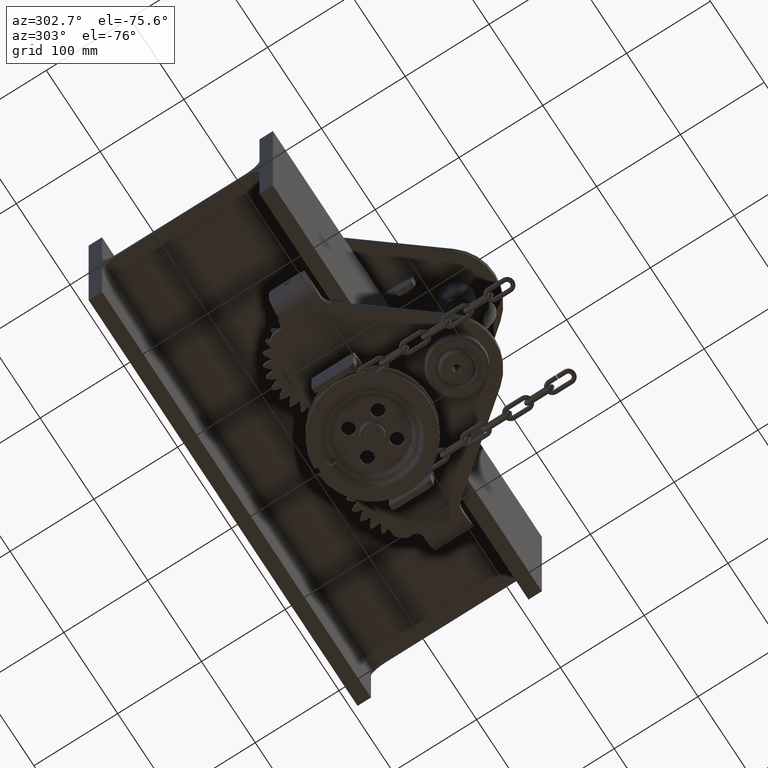
[diagram: clean part render]
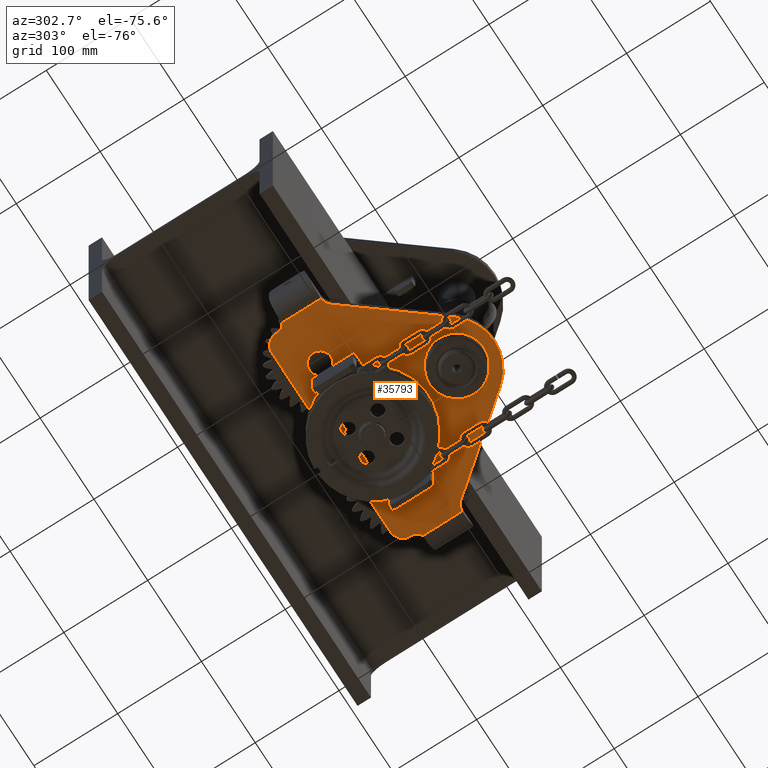
[diagram: same view with one face highlighted and labeled with its STEP entity id]
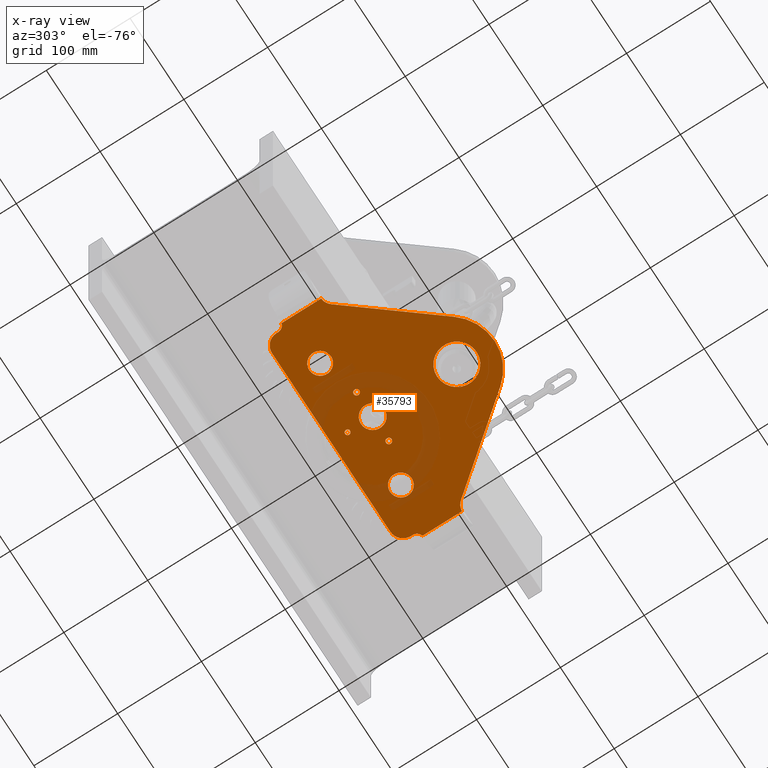
[diagram: x-ray of the same camera — body ghosted, the highlighted face saturated]
A machine part, auxiliary view. The second image highlights one B-rep face of the part: STEP entity #35793.
The next image is the same camera in x-ray: the body ghosted, the highlighted face saturated — about 14% of this face is hidden behind the body in this view.
In plain terms, the highlighted planar face has unit normal (0, 0, -1).
Its self-contained STEP definition (entity closure, byte-faithful):
#73 = CARTESIAN_POINT ( 'NONE',  ( -110.0000000000001300, -33.99999999999986500, -136.9999999999994600 ) ) ;
#652 = EDGE_CURVE ( 'NONE', #59245, #78891, #79615, .T. ) ;
#899 = EDGE_CURVE ( 'NONE', #67370, #43402, #65074, .T. ) ;
#1094 = CARTESIAN_POINT ( 'NONE',  ( 29.99999999999983300, -65.11999999999990500, -136.9999999999994600 ) ) ;
#1097 = AXIS2_PLACEMENT_3D ( 'NONE', #94755, #52345, #85283 ) ;
#1808 = DIRECTION ( 'NONE',  ( 0.0000000000000000000, 1.000000000000000000, 1.224606353822377300E-016 ) ) ;
#1983 = CIRCLE ( 'NONE', #8566, 15.00000000000000000 ) ;
#2643 = DIRECTION ( 'NONE',  ( 0.0000000000000000000, 1.000000000000000000, 1.224606353822377300E-016 ) ) ;
#2717 = VERTEX_POINT ( 'NONE', #107734 ) ;
#3282 = CIRCLE ( 'NONE', #64720, 8.000000000000003600 ) ;
#3321 = CARTESIAN_POINT ( 'NONE',  ( 109.9999999999998400, -33.99999999999989300, -136.9999999999994600 ) ) ;
#3772 = CARTESIAN_POINT ( 'NONE',  ( -1.387778780781445700E-013, -168.9999999999998900, -136.9999999999994900 ) ) ;
#3836 = EDGE_CURVE ( 'NONE', #25711, #80579, #53904, .T. ) ;
#4338 = CARTESIAN_POINT ( 'NONE',  ( 120.4964843667718200, -96.61803319927669500, -136.9999999999994600 ) ) ;
#4355 = CARTESIAN_POINT ( 'NONE',  ( -131.0000000000001400, -91.04809906435026800, -136.9999999999994600 ) ) ;
#4409 = ORIENTED_EDGE ( 'NONE', *, *, #652, .T. ) ;
#4417 = DIRECTION ( 'NONE',  ( 0.0000000000000000000, 1.224606353822377300E-016, -1.000000000000000000 ) ) ;
#4706 = CARTESIAN_POINT ( 'NONE',  ( -30.00000000000016700, -68.51999999999988200, -136.9999999999994600 ) ) ;
#5162 = EDGE_CURVE ( 'NONE', #40795, #47953, #36198, .T. ) ;
#5544 = CARTESIAN_POINT ( 'NONE',  ( -75.00000000000015600, -53.99999999999989300, -136.9999999999994600 ) ) ;
#6331 = VERTEX_POINT ( 'NONE', #60033 ) ;
#6685 = AXIS2_PLACEMENT_3D ( 'NONE', #101547, #18002, #51350 ) ;
#7227 = ORIENTED_EDGE ( 'NONE', *, *, #23768, .T. ) ;
#7337 = CARTESIAN_POINT ( 'NONE',  ( -1.665334536937734800E-013, -68.51999999999988200, -136.9999999999994600 ) ) ;
#7719 = CARTESIAN_POINT ( 'NONE',  ( 42.91389644517570900, -193.4005449359849300, -136.9999999999994600 ) ) ;
#8000 = ORIENTED_EDGE ( 'NONE', *, *, #63239, .T. ) ;
#8428 = DIRECTION ( 'NONE',  ( 0.0000000000000000000, 1.000000000000000000, 0.0000000000000000000 ) ) ;
#8566 = AXIS2_PLACEMENT_3D ( 'NONE', #36663, #87919, #86513 ) ;
#8819 = CIRCLE ( 'NONE', #58033, 8.000000000000003600 ) ;
#8954 = FACE_BOUND ( 'NONE', #34203, .T. ) ;
#9912 = CIRCLE ( 'NONE', #25004, 23.60000000000000900 ) ;
#10301 = CARTESIAN_POINT ( 'NONE',  ( -42.91389644517602900, -193.4005449359849300, -136.9999999999994600 ) ) ;
#10419 = VERTEX_POINT ( 'NONE', #102532 ) ;
#11129 = AXIS2_PLACEMENT_3D ( 'NONE', #3321, #4417, #12433 ) ;
#12147 = DIRECTION ( 'NONE',  ( -0.0000000000000000000, -1.224606353822377300E-016, 1.000000000000000000 ) ) ;
#12284 = AXIS2_PLACEMENT_3D ( 'NONE', #4706, #29605, #54901 ) ;
#12433 = DIRECTION ( 'NONE',  ( 0.0000000000000000000, -1.000000000000000000, 0.0000000000000000000 ) ) ;
#12790 = ORIENTED_EDGE ( 'NONE', *, *, #5162, .F. ) ;
#12872 = DIRECTION ( 'NONE',  ( 0.0000000000000000000, -1.000000000000000000, 0.0000000000000000000 ) ) ;
#14220 = FACE_OUTER_BOUND ( 'NONE', #23734, .T. ) ;
#14679 = DIRECTION ( 'NONE',  ( 0.0000000000000000000, -1.224606353822377300E-016, 1.000000000000000000 ) ) ;
#17450 = EDGE_CURVE ( 'NONE', #70076, #51594, #56736, .T. ) ;
#18002 = DIRECTION ( 'NONE',  ( 0.0000000000000000000, -1.224606353822377300E-016, 1.000000000000000000 ) ) ;
#18496 = CARTESIAN_POINT ( 'NONE',  ( -1.665334536937734800E-013, -82.51999999999988200, -136.9999999999994600 ) ) ;
#18559 = CIRCLE ( 'NONE', #12284, 3.400000000000000400 ) ;
#20782 = ORIENTED_EDGE ( 'NONE', *, *, #32483, .T. ) ;
#20842 = ORIENTED_EDGE ( 'NONE', *, *, #77839, .T. ) ;
#21552 = ORIENTED_EDGE ( 'NONE', *, *, #74555, .T. ) ;
#22568 = ORIENTED_EDGE ( 'NONE', *, *, #97216, .T. ) ;
#23027 = DIRECTION ( 'NONE',  ( -0.0000000000000000000, -1.224606353822377300E-016, 1.000000000000000000 ) ) ;
#23087 = DIRECTION ( 'NONE',  ( 0.0000000000000000000, -1.000000000000000000, 0.0000000000000000000 ) ) ;
#23403 = CIRCLE ( 'NONE', #96873, 55.00000000000002100 ) ;
#23734 = EDGE_LOOP ( 'NONE', ( #43636, #96577, #84201, #84536, #32937, #37136, #20782, #94601, #7227, #8000, #103105, #94557, #12790, #107642 ) ) ;
#23768 = EDGE_CURVE ( 'NONE', #31378, #58559, #50377, .T. ) ;
#24074 = EDGE_CURVE ( 'NONE', #63563, #81916, #27913, .T. ) ;
#24454 = DIRECTION ( 'NONE',  ( -0.0000000000000000000, -1.224606353822377300E-016, 1.000000000000000000 ) ) ;
#25004 = AXIS2_PLACEMENT_3D ( 'NONE', #58260, #24454, #98850 ) ;
#25711 = VERTEX_POINT ( 'NONE', #46926 ) ;
#25863 = DIRECTION ( 'NONE',  ( 0.0000000000000000000, 1.224606353822377300E-016, -1.000000000000000000 ) ) ;
#26760 = EDGE_CURVE ( 'NONE', #6331, #101007, #82602, .T. ) ;
#27913 = CIRCLE ( 'NONE', #107511, 3.399999999999986100 ) ;
#28038 = DIRECTION ( 'NONE',  ( 0.0000000000000000000, -1.000000000000000000, -1.224606353822377300E-016 ) ) ;
#29124 = CARTESIAN_POINT ( 'NONE',  ( 74.99999999999981500, -66.99999999999987200, -136.9999999999994600 ) ) ;
#29433 = DIRECTION ( 'NONE',  ( 0.0000000000000000000, -1.000000000000000000, 0.0000000000000000000 ) ) ;
#29605 = DIRECTION ( 'NONE',  ( 0.0000000000000000000, 1.224606353822377300E-016, -1.000000000000000000 ) ) ;
#30002 = DIRECTION ( 'NONE',  ( -1.000000000000000000, -0.0000000000000000000, 0.0000000000000000000 ) ) ;
#30172 = CARTESIAN_POINT ( 'NONE',  ( -131.0000000000001400, -213.9999999999999100, -136.9999999999994600 ) ) ;
#30490 = CIRCLE ( 'NONE', #108629, 13.00000000000000500 ) ;
#30542 = DIRECTION ( 'NONE',  ( 0.0000000000000000000, 1.224606353822377300E-016, -1.000000000000000000 ) ) ;
#30892 = VECTOR ( 'NONE', #2643, 1000.000000000000000 ) ;
#31193 = ORIENTED_EDGE ( 'NONE', *, *, #101825, .T. ) ;
#31378 = VERTEX_POINT ( 'NONE', #4355 ) ;
#32483 = EDGE_CURVE ( 'NONE', #65886, #46636, #67208, .T. ) ;
#32660 = AXIS2_PLACEMENT_3D ( 'NONE', #46311, #80416, #29433 ) ;
#32937 = ORIENTED_EDGE ( 'NONE', *, *, #26760, .T. ) ;
#33026 = ORIENTED_EDGE ( 'NONE', *, *, #67580, .F. ) ;
#33047 = VECTOR ( 'NONE', #1808, 1000.000000000000000 ) ;
#33577 = EDGE_CURVE ( 'NONE', #43402, #47953, #40485, .T. ) ;
#34203 = EDGE_LOOP ( 'NONE', ( #70425, #22568 ) ) ;
#34704 = CARTESIAN_POINT ( 'NONE',  ( 29.99999999999983300, -68.51999999999988200, -136.9999999999994600 ) ) ;
#35613 = EDGE_CURVE ( 'NONE', #51594, #70076, #58979, .T. ) ;
#35793 = ADVANCED_FACE ( 'NONE', ( #49636, #68063, #47027, #70716, #44407, #107266, #8954, #14220 ), #55459, .T. ) ;
#36169 = DIRECTION ( 'NONE',  ( 0.0000000000000000000, -1.224606353822377300E-016, 1.000000000000000000 ) ) ;
#36198 = LINE ( 'NONE', #96315, #105624 ) ;
#36345 = CARTESIAN_POINT ( 'NONE',  ( -30.00000000000016700, -71.91999999999988800, -136.9999999999994600 ) ) ;
#36663 = CARTESIAN_POINT ( 'NONE',  ( 132.2002743063652600, -105.9999999999999000, -136.9999999999994600 ) ) ;
#36821 = DIRECTION ( 'NONE',  ( -0.0000000000000000000, -1.224606353822377300E-016, 1.000000000000000000 ) ) ;
#36888 = CARTESIAN_POINT ( 'NONE',  ( -1.665334536937734800E-013, -38.51999999999989700, -136.9999999999994600 ) ) ;
#37024 = AXIS2_PLACEMENT_3D ( 'NONE', #77886, #44828, #62145 ) ;
#37136 = ORIENTED_EDGE ( 'NONE', *, *, #49448, .T. ) ;
#37538 = DIRECTION ( 'NONE',  ( 0.0000000000000000000, 1.224606353822377300E-016, -1.000000000000000000 ) ) ;
#37654 = CARTESIAN_POINT ( 'NONE',  ( 74.99999999999981500, -40.99999999999987200, -136.9999999999994600 ) ) ;
#38009 = AXIS2_PLACEMENT_3D ( 'NONE', #88678, #54590, #105128 ) ;
#38275 = DIRECTION ( 'NONE',  ( 0.0000000000000000000, 1.000000000000000000, 0.0000000000000000000 ) ) ;
#38631 = DIRECTION ( 'NONE',  ( 0.0000000000000000000, 1.000000000000000000, 1.224606353822377300E-016 ) ) ;
#39214 = DIRECTION ( 'NONE',  ( 0.0000000000000000000, 1.000000000000000000, 0.0000000000000000000 ) ) ;
#39285 = ORIENTED_EDGE ( 'NONE', *, *, #77070, .T. ) ;
#40485 = CIRCLE ( 'NONE', #76712, 15.00000000000000700 ) ;
#40795 = VERTEX_POINT ( 'NONE', #71347 ) ;
#41257 = EDGE_CURVE ( 'NONE', #81916, #63563, #76977, .T. ) ;
#42149 = CARTESIAN_POINT ( 'NONE',  ( -1.665334536937734800E-013, -41.51999999999988900, -136.9999999999994600 ) ) ;
#42284 = EDGE_LOOP ( 'NONE', ( #85543, #86043 ) ) ;
#42418 = CARTESIAN_POINT ( 'NONE',  ( -110.0000000000001300, -18.99999999999986500, -136.9999999999994600 ) ) ;
#43402 = VERTEX_POINT ( 'NONE', #78061 ) ;
#43490 = DIRECTION ( 'NONE',  ( -0.6254644533815452200, 0.7802526626395611700, 9.555023682552343400E-017 ) ) ;
#43636 = ORIENTED_EDGE ( 'NONE', *, *, #3836, .T. ) ;
#44407 = FACE_BOUND ( 'NONE', #92670, .T. ) ;
#44810 = VECTOR ( 'NONE', #43490, 1000.000000000000000 ) ;
#44828 = DIRECTION ( 'NONE',  ( 0.0000000000000000000, 1.224606353822377300E-016, -1.000000000000000000 ) ) ;
#45952 = CARTESIAN_POINT ( 'NONE',  ( -30.00000000000016700, -65.11999999999989100, -136.9999999999994600 ) ) ;
#46311 = CARTESIAN_POINT ( 'NONE',  ( -1.665334536937734800E-013, -38.51999999999989700, -136.9999999999994600 ) ) ;
#46315 = CARTESIAN_POINT ( 'NONE',  ( -133.0000000000001400, -35.99999999999985100, -136.9999999999994600 ) ) ;
#46494 = CIRCLE ( 'NONE', #74190, 13.99999999999999800 ) ;
#46636 = VERTEX_POINT ( 'NONE', #91621 ) ;
#46926 = CARTESIAN_POINT ( 'NONE',  ( 124.9999999999998600, -33.99999999999989300, -136.9999999999994600 ) ) ;
#47027 = FACE_BOUND ( 'NONE', #94191, .T. ) ;
#47953 = VERTEX_POINT ( 'NONE', #42418 ) ;
#48232 = AXIS2_PLACEMENT_3D ( 'NONE', #5544, #63554, #55047 ) ;
#48830 = AXIS2_PLACEMENT_3D ( 'NONE', #30172, #30542, #38631 ) ;
#48945 = DIRECTION ( 'NONE',  ( -0.0000000000000000000, -1.224606353822377300E-016, 1.000000000000000000 ) ) ;
#49448 = EDGE_CURVE ( 'NONE', #101007, #65886, #23403, .T. ) ;
#49636 = FACE_BOUND ( 'NONE', #72762, .T. ) ;
#50377 = LINE ( 'NONE', #94455, #106760 ) ;
#51314 = CARTESIAN_POINT ( 'NONE',  ( -131.0000000000001400, -43.74596669241469000, -136.9999999999994600 ) ) ;
#51350 = DIRECTION ( 'NONE',  ( 0.0000000000000000000, -1.000000000000000000, 0.0000000000000000000 ) ) ;
#51594 = VERTEX_POINT ( 'NONE', #80259 ) ;
#51949 = CARTESIAN_POINT ( 'NONE',  ( 130.9999999999998000, -213.9999999999999100, -136.9999999999994900 ) ) ;
#51951 = ORIENTED_EDGE ( 'NONE', *, *, #17450, .T. ) ;
#52022 = ORIENTED_EDGE ( 'NONE', *, *, #35613, .T. ) ;
#52345 = DIRECTION ( 'NONE',  ( 0.0000000000000000000, -1.224606353822377300E-016, 1.000000000000000000 ) ) ;
#52898 = DIRECTION ( 'NONE',  ( 0.0000000000000000000, 1.000000000000000000, 0.0000000000000000000 ) ) ;
#53033 = CARTESIAN_POINT ( 'NONE',  ( 29.99999999999983300, -71.91999999999987400, -136.9999999999994600 ) ) ;
#53260 = CARTESIAN_POINT ( 'NONE',  ( -1.387778780781445700E-013, -158.9999999999999100, -136.9999999999994600 ) ) ;
#53586 = CIRCLE ( 'NONE', #86368, 15.00000000000000000 ) ;
#53904 = LINE ( 'NONE', #103146, #107616 ) ;
#54219 = EDGE_CURVE ( 'NONE', #46636, #31378, #53586, .T. ) ;
#54590 = DIRECTION ( 'NONE',  ( 0.0000000000000000000, -1.224606353822377300E-016, 1.000000000000000000 ) ) ;
#54901 = DIRECTION ( 'NONE',  ( 0.0000000000000000000, 1.000000000000000000, 0.0000000000000000000 ) ) ;
#55047 = DIRECTION ( 'NONE',  ( 0.0000000000000000000, -1.000000000000000000, 0.0000000000000000000 ) ) ;
#55352 = DIRECTION ( 'NONE',  ( 0.0000000000000000000, 1.224606353822377300E-016, -1.000000000000000000 ) ) ;
#55459 = PLANE ( 'NONE',  #48830 ) ;
#56736 = CIRCLE ( 'NONE', #65422, 2.999999999999995600 ) ;
#57766 = CARTESIAN_POINT ( 'NONE',  ( -75.00000000000015600, -66.99999999999988600, -136.9999999999994600 ) ) ;
#58033 = AXIS2_PLACEMENT_3D ( 'NONE', #89775, #23027, #39214 ) ;
#58260 = CARTESIAN_POINT ( 'NONE',  ( -1.387778780781445700E-013, -168.9999999999998900, -136.9999999999994900 ) ) ;
#58559 = VERTEX_POINT ( 'NONE', #51314 ) ;
#58692 = DIRECTION ( 'NONE',  ( 0.0000000000000000000, 1.224606353822377300E-016, -1.000000000000000000 ) ) ;
#58979 = CIRCLE ( 'NONE', #32660, 2.999999999999995600 ) ;
#59245 = VERTEX_POINT ( 'NONE', #37654 ) ;
#59674 = DIRECTION ( 'NONE',  ( 0.0000000000000000000, 1.000000000000000000, 0.0000000000000000000 ) ) ;
#60033 = CARTESIAN_POINT ( 'NONE',  ( 120.4964843667718200, -96.61803319927669500, -136.9999999999994600 ) ) ;
#60811 = EDGE_CURVE ( 'NONE', #71615, #81590, #73752, .T. ) ;
#61685 = CARTESIAN_POINT ( 'NONE',  ( -125.0000000000001400, -35.99999999999985100, -136.9999999999994600 ) ) ;
#62145 = DIRECTION ( 'NONE',  ( 0.0000000000000000000, 1.000000000000000000, 0.0000000000000000000 ) ) ;
#62701 = DIRECTION ( 'NONE',  ( 0.0000000000000000000, 1.000000000000000000, 1.224606353822377300E-016 ) ) ;
#62851 = CIRCLE ( 'NONE', #38009, 13.99999999999999800 ) ;
#63239 = EDGE_CURVE ( 'NONE', #58559, #67370, #3282, .T. ) ;
#63255 = VERTEX_POINT ( 'NONE', #45952 ) ;
#63554 = DIRECTION ( 'NONE',  ( 0.0000000000000000000, -1.224606353822377300E-016, 1.000000000000000000 ) ) ;
#63563 = VERTEX_POINT ( 'NONE', #53033 ) ;
#63688 = CARTESIAN_POINT ( 'NONE',  ( -1.358877116321568100E-013, -145.3999999999998900, -136.9999999999994900 ) ) ;
#64654 = CIRCLE ( 'NONE', #99029, 23.60000000000000900 ) ;
#64720 = AXIS2_PLACEMENT_3D ( 'NONE', #46315, #36821, #38275 ) ;
#64960 = DIRECTION ( 'NONE',  ( 0.0000000000000000000, 1.000000000000000000, 0.0000000000000000000 ) ) ;
#65074 = LINE ( 'NONE', #86567, #30892 ) ;
#65422 = AXIS2_PLACEMENT_3D ( 'NONE', #36888, #36169, #69609 ) ;
#65886 = VERTEX_POINT ( 'NONE', #10301 ) ;
#67208 = LINE ( 'NONE', #84610, #44810 ) ;
#67370 = VERTEX_POINT ( 'NONE', #61685 ) ;
#67580 = EDGE_CURVE ( 'NONE', #72015, #63255, #90879, .T. ) ;
#68063 = FACE_BOUND ( 'NONE', #42284, .T. ) ;
#68196 = CARTESIAN_POINT ( 'NONE',  ( 124.9999999999998600, -35.99999999999988600, -136.9999999999994600 ) ) ;
#69609 = DIRECTION ( 'NONE',  ( 0.0000000000000000000, -1.000000000000000000, 0.0000000000000000000 ) ) ;
#70076 = VERTEX_POINT ( 'NONE', #42149 ) ;
#70425 = ORIENTED_EDGE ( 'NONE', *, *, #95864, .T. ) ;
#70446 = DIRECTION ( 'NONE',  ( 0.0000000000000000000, -1.000000000000000000, 0.0000000000000000000 ) ) ;
#70716 = FACE_BOUND ( 'NONE', #89415, .T. ) ;
#70795 = DIRECTION ( 'NONE',  ( 0.0000000000000000000, -1.224606353822377300E-016, 1.000000000000000000 ) ) ;
#71347 = CARTESIAN_POINT ( 'NONE',  ( 109.9999999999998400, -18.99999999999989300, -136.9999999999994600 ) ) ;
#71615 = VERTEX_POINT ( 'NONE', #73179 ) ;
#72015 = VERTEX_POINT ( 'NONE', #36345 ) ;
#72762 = EDGE_LOOP ( 'NONE', ( #33026, #97896 ) ) ;
#73179 = CARTESIAN_POINT ( 'NONE',  ( 130.9999999999998000, -91.04809906435029600, -136.9999999999994600 ) ) ;
#73302 = CARTESIAN_POINT ( 'NONE',  ( -132.2002743063655100, -105.9999999999998700, -136.9999999999994600 ) ) ;
#73752 = LINE ( 'NONE', #51949, #33047 ) ;
#74190 = AXIS2_PLACEMENT_3D ( 'NONE', #7337, #14679, #23087 ) ;
#74555 = EDGE_CURVE ( 'NONE', #2717, #75411, #62851, .T. ) ;
#75411 = VERTEX_POINT ( 'NONE', #18496 ) ;
#76712 = AXIS2_PLACEMENT_3D ( 'NONE', #73, #58692, #8428 ) ;
#76977 = CIRCLE ( 'NONE', #37024, 3.399999999999986100 ) ;
#77070 = EDGE_CURVE ( 'NONE', #75411, #2717, #46494, .T. ) ;
#77839 = EDGE_CURVE ( 'NONE', #89532, #10419, #99750, .T. ) ;
#77886 = CARTESIAN_POINT ( 'NONE',  ( 29.99999999999983300, -68.51999999999988200, -136.9999999999994600 ) ) ;
#78061 = CARTESIAN_POINT ( 'NONE',  ( -125.0000000000001400, -33.99999999999987200, -136.9999999999994600 ) ) ;
#78891 = VERTEX_POINT ( 'NONE', #29124 ) ;
#79615 = CIRCLE ( 'NONE', #6685, 13.00000000000000500 ) ;
#79981 = VECTOR ( 'NONE', #80222, 1000.000000000000200 ) ;
#80222 = DIRECTION ( 'NONE',  ( -0.6254644533815453300, -0.7802526626395610600, -9.555023682552342200E-017 ) ) ;
#80259 = CARTESIAN_POINT ( 'NONE',  ( -1.661660596540292800E-013, -35.51999999999989700, -136.9999999999994600 ) ) ;
#80416 = DIRECTION ( 'NONE',  ( 0.0000000000000000000, -1.224606353822377300E-016, 1.000000000000000000 ) ) ;
#80579 = VERTEX_POINT ( 'NONE', #68196 ) ;
#81590 = VERTEX_POINT ( 'NONE', #84781 ) ;
#81916 = VERTEX_POINT ( 'NONE', #1094 ) ;
#82192 = EDGE_CURVE ( 'NONE', #10419, #89532, #84983, .T. ) ;
#82602 = LINE ( 'NONE', #4338, #79981 ) ;
#83431 = EDGE_LOOP ( 'NONE', ( #20842, #100663 ) ) ;
#84201 = ORIENTED_EDGE ( 'NONE', *, *, #60811, .F. ) ;
#84536 = ORIENTED_EDGE ( 'NONE', *, *, #91440, .T. ) ;
#84610 = CARTESIAN_POINT ( 'NONE',  ( -120.4964843667721200, -96.61803319927666700, -136.9999999999994600 ) ) ;
#84781 = CARTESIAN_POINT ( 'NONE',  ( 130.9999999999998000, -43.74596669241470400, -136.9999999999994600 ) ) ;
#84983 = CIRCLE ( 'NONE', #1097, 12.99999999999999800 ) ;
#85282 = VERTEX_POINT ( 'NONE', #106388 ) ;
#85283 = DIRECTION ( 'NONE',  ( 0.0000000000000000000, -1.000000000000000000, 0.0000000000000000000 ) ) ;
#85543 = ORIENTED_EDGE ( 'NONE', *, *, #24074, .F. ) ;
#86043 = ORIENTED_EDGE ( 'NONE', *, *, #41257, .F. ) ;
#86296 = CIRCLE ( 'NONE', #11129, 15.00000000000000700 ) ;
#86368 = AXIS2_PLACEMENT_3D ( 'NONE', #73302, #48945, #107224 ) ;
#86513 = DIRECTION ( 'NONE',  ( 0.0000000000000000000, 1.000000000000000000, 0.0000000000000000000 ) ) ;
#86567 = CARTESIAN_POINT ( 'NONE',  ( -125.0000000000001400, -33.99999999999986500, -136.9999999999994600 ) ) ;
#87048 = EDGE_CURVE ( 'NONE', #63255, #72015, #18559, .T. ) ;
#87919 = DIRECTION ( 'NONE',  ( -0.0000000000000000000, -1.224606353822377300E-016, 1.000000000000000000 ) ) ;
#88678 = CARTESIAN_POINT ( 'NONE',  ( -1.665334536937734800E-013, -68.51999999999988200, -136.9999999999994600 ) ) ;
#89415 = EDGE_LOOP ( 'NONE', ( #51951, #52022 ) ) ;
#89532 = VERTEX_POINT ( 'NONE', #57766 ) ;
#89775 = CARTESIAN_POINT ( 'NONE',  ( 132.9999999999998600, -35.99999999999988600, -136.9999999999994600 ) ) ;
#90196 = EDGE_CURVE ( 'NONE', #40795, #25711, #86296, .T. ) ;
#90879 = CIRCLE ( 'NONE', #105204, 3.400000000000000400 ) ;
#91440 = EDGE_CURVE ( 'NONE', #71615, #6331, #1983, .T. ) ;
#91621 = CARTESIAN_POINT ( 'NONE',  ( -120.4964843667721200, -96.61803319927666700, -136.9999999999994600 ) ) ;
#92670 = EDGE_LOOP ( 'NONE', ( #31193, #4409 ) ) ;
#94191 = EDGE_LOOP ( 'NONE', ( #39285, #21552 ) ) ;
#94455 = CARTESIAN_POINT ( 'NONE',  ( -131.0000000000001400, -213.9999999999999100, -136.9999999999994600 ) ) ;
#94557 = ORIENTED_EDGE ( 'NONE', *, *, #33577, .T. ) ;
#94601 = ORIENTED_EDGE ( 'NONE', *, *, #54219, .T. ) ;
#94755 = CARTESIAN_POINT ( 'NONE',  ( -75.00000000000015600, -53.99999999999989300, -136.9999999999994600 ) ) ;
#95864 = EDGE_CURVE ( 'NONE', #85282, #103242, #9912, .T. ) ;
#96315 = CARTESIAN_POINT ( 'NONE',  ( -131.0000000000001400, -18.99999999999989300, -136.9999999999994600 ) ) ;
#96577 = ORIENTED_EDGE ( 'NONE', *, *, #106141, .T. ) ;
#96873 = AXIS2_PLACEMENT_3D ( 'NONE', #53260, #37538, #52898 ) ;
#97216 = EDGE_CURVE ( 'NONE', #103242, #85282, #64654, .T. ) ;
#97896 = ORIENTED_EDGE ( 'NONE', *, *, #87048, .F. ) ;
#98850 = DIRECTION ( 'NONE',  ( 0.0000000000000000000, -1.000000000000000000, 0.0000000000000000000 ) ) ;
#99029 = AXIS2_PLACEMENT_3D ( 'NONE', #3772, #12147, #12872 ) ;
#99750 = CIRCLE ( 'NONE', #48232, 12.99999999999999800 ) ;
#100663 = ORIENTED_EDGE ( 'NONE', *, *, #82192, .T. ) ;
#101007 = VERTEX_POINT ( 'NONE', #7719 ) ;
#101547 = CARTESIAN_POINT ( 'NONE',  ( 74.99999999999981500, -53.99999999999987200, -136.9999999999994600 ) ) ;
#101825 = EDGE_CURVE ( 'NONE', #78891, #59245, #30490, .T. ) ;
#102532 = CARTESIAN_POINT ( 'NONE',  ( -75.00000000000015600, -40.99999999999990100, -136.9999999999994600 ) ) ;
#103105 = ORIENTED_EDGE ( 'NONE', *, *, #899, .T. ) ;
#103146 = CARTESIAN_POINT ( 'NONE',  ( 124.9999999999998600, -33.99999999999989300, -136.9999999999994600 ) ) ;
#103242 = VERTEX_POINT ( 'NONE', #63688 ) ;
#103280 = CARTESIAN_POINT ( 'NONE',  ( 74.99999999999981500, -53.99999999999987200, -136.9999999999994600 ) ) ;
#105128 = DIRECTION ( 'NONE',  ( 0.0000000000000000000, -1.000000000000000000, 0.0000000000000000000 ) ) ;
#105204 = AXIS2_PLACEMENT_3D ( 'NONE', #106230, #55352, #64960 ) ;
#105624 = VECTOR ( 'NONE', #30002, 1000.000000000000000 ) ;
#106141 = EDGE_CURVE ( 'NONE', #80579, #81590, #8819, .T. ) ;
#106230 = CARTESIAN_POINT ( 'NONE',  ( -30.00000000000016700, -68.51999999999988200, -136.9999999999994600 ) ) ;
#106388 = CARTESIAN_POINT ( 'NONE',  ( -1.387778780781445700E-013, -192.5999999999999100, -136.9999999999994900 ) ) ;
#106760 = VECTOR ( 'NONE', #62701, 1000.000000000000000 ) ;
#107224 = DIRECTION ( 'NONE',  ( 0.0000000000000000000, 1.000000000000000000, 0.0000000000000000000 ) ) ;
#107266 = FACE_BOUND ( 'NONE', #83431, .T. ) ;
#107511 = AXIS2_PLACEMENT_3D ( 'NONE', #34704, #25863, #59674 ) ;
#107616 = VECTOR ( 'NONE', #28038, 1000.000000000000000 ) ;
#107642 = ORIENTED_EDGE ( 'NONE', *, *, #90196, .T. ) ;
#107734 = CARTESIAN_POINT ( 'NONE',  ( -1.648189481749671900E-013, -54.51999999999988900, -136.9999999999994600 ) ) ;
#108629 = AXIS2_PLACEMENT_3D ( 'NONE', #103280, #70795, #70446 ) ;